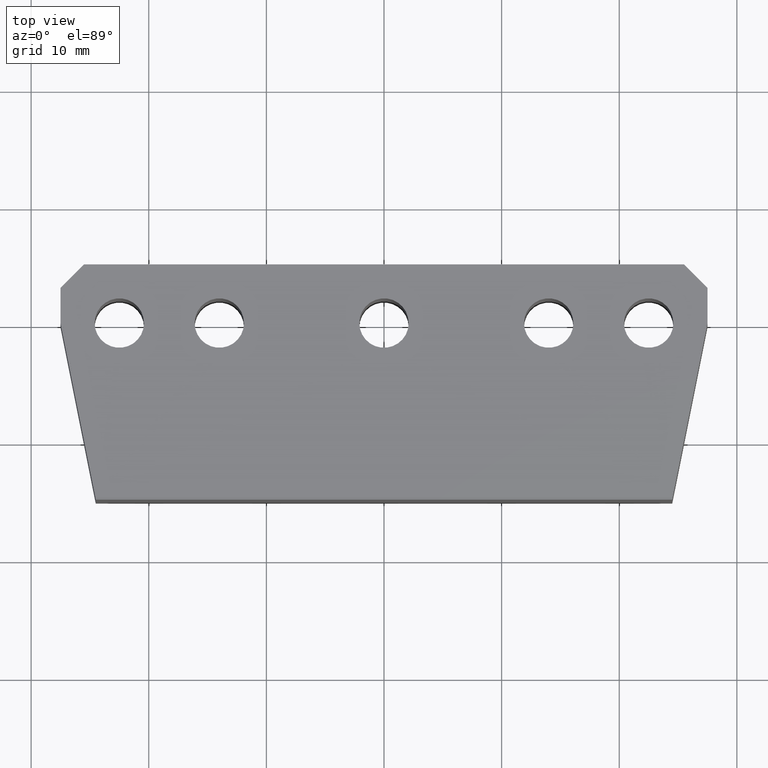
[diagram: clean part render]
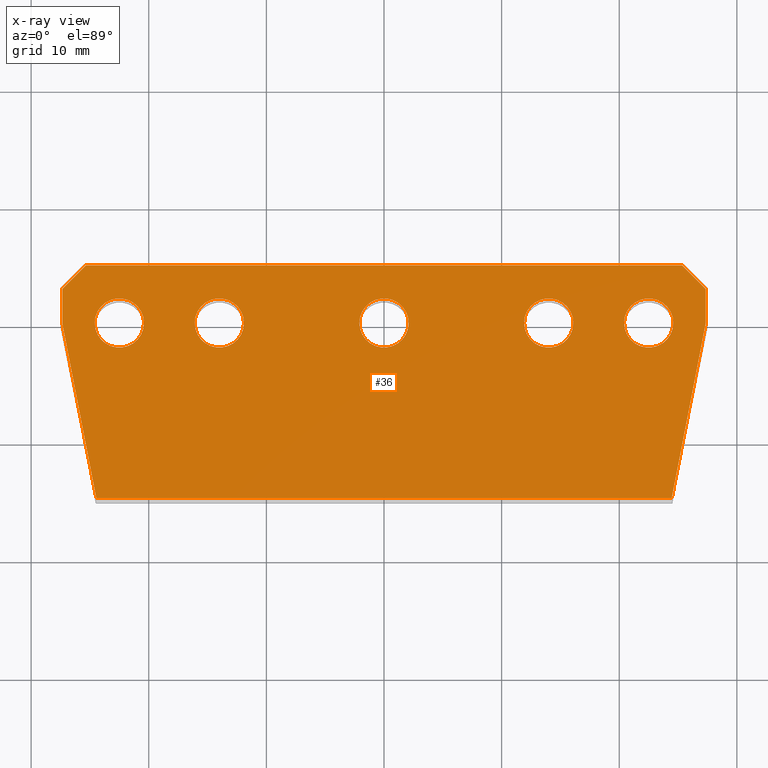
[diagram: x-ray — body ghosted, one internal face saturated and labeled with its STEP entity id]
A machine part, top view, then the same camera in x-ray: the body is ghosted and one INTERNAL B-rep face — a face not visible from any outside direction — is saturated and labeled: STEP entity #36.
In plain terms, the highlighted planar face has unit normal (0, 0, 1).
Its self-contained STEP definition (entity closure, byte-faithful):
#36 = ADVANCED_FACE ( 'NONE', ( #2182, #2196, #2179, #2177, #2183, #2181 ), #2180, .F. ) ;
#107 = EDGE_CURVE ( 'NONE', #2748, #2770, #1866, .T. ) ;
#112 = EDGE_CURVE ( 'NONE', #2748, #2763, #1845, .T. ) ;
#113 = EDGE_CURVE ( 'NONE', #2751, #2752, #649, .T. ) ;
#114 = EDGE_CURVE ( 'NONE', #2746, #2700, #705, .T. ) ;
#115 = EDGE_CURVE ( 'NONE', #2761, #2744, #707, .T. ) ;
#117 = EDGE_CURVE ( 'NONE', #2767, #2770, #1828, .T. ) ;
#120 = EDGE_CURVE ( 'NONE', #2768, #2763, #1834, .T. ) ;
#123 = EDGE_CURVE ( 'NONE', #2767, #2772, #1813, .T. ) ;
#126 = EDGE_CURVE ( 'NONE', #2759, #2760, #724, .T. ) ;
#127 = EDGE_CURVE ( 'NONE', #2755, #2756, #686, .T. ) ;
#128 = EDGE_CURVE ( 'NONE', #2771, #2768, #1797, .T. ) ;
#130 = EDGE_CURVE ( 'NONE', #2762, #2771, #1789, .T. ) ;
#132 = EDGE_CURVE ( 'NONE', #2772, #2762, #1784, .T. ) ;
#141 = EDGE_CURVE ( 'NONE', #2752, #2751, #723, .T. ) ;
#255 = CIRCLE ( 'NONE', #743, 2.099999999999999600 ) ;
#270 = AXIS2_PLACEMENT_3D ( 'NONE', #2176, #2175, #2174 ) ;
#402 = CIRCLE ( 'NONE', #746, 2.099999999999999600 ) ;
#417 = AXIS2_PLACEMENT_3D ( 'NONE', #1318, #1316, #1314 ) ;
#499 = VECTOR ( 'NONE', #1817, 1000.000000000000000 ) ;
#518 = CIRCLE ( 'NONE', #417, 2.100000000000001000 ) ;
#546 = AXIS2_PLACEMENT_3D ( 'NONE', #1840, #1839, #1838 ) ;
#551 = AXIS2_PLACEMENT_3D ( 'NONE', #1756, #1755, #1754 ) ;
#560 = VECTOR ( 'NONE', #1842, 999.9999999999998900 ) ;
#601 = VECTOR ( 'NONE', #1826, 1000.000000000000000 ) ;
#633 = AXIS2_PLACEMENT_3D ( 'NONE', #1801, #1800, #1799 ) ;
#638 = VECTOR ( 'NONE', #1855, 1000.000000000000000 ) ;
#649 = CIRCLE ( 'NONE', #546, 2.100000000000001000 ) ;
#663 = AXIS2_PLACEMENT_3D ( 'NONE', #1279, #1278, #1276 ) ;
#676 = VECTOR ( 'NONE', #1781, 1000.000000000000100 ) ;
#684 = AXIS2_PLACEMENT_3D ( 'NONE', #1837, #1836, #1835 ) ;
#686 = CIRCLE ( 'NONE', #752, 2.099999999999999600 ) ;
#698 = AXIS2_PLACEMENT_3D ( 'NONE', #1832, #1831, #1830 ) ;
#701 = VECTOR ( 'NONE', #1809, 1000.000000000000000 ) ;
#705 = CIRCLE ( 'NONE', #684, 2.100000000000001000 ) ;
#707 = CIRCLE ( 'NONE', #698, 2.099999999999999600 ) ;
#708 = VECTOR ( 'NONE', #1787, 1000.000000000000000 ) ;
#723 = CIRCLE ( 'NONE', #551, 2.100000000000001000 ) ;
#724 = CIRCLE ( 'NONE', #633, 2.100000000000000500 ) ;
#725 = VECTOR ( 'NONE', #1792, 1000.000000000000200 ) ;
#736 = CIRCLE ( 'NONE', #663, 2.100000000000000500 ) ;
#743 = AXIS2_PLACEMENT_3D ( 'NONE', #1205, #1204, #1203 ) ;
#746 = AXIS2_PLACEMENT_3D ( 'NONE', #1309, #1307, #1305 ) ;
#752 = AXIS2_PLACEMENT_3D ( 'NONE', #1796, #1795, #1794 ) ;
#797 = EDGE_LOOP ( 'NONE', ( #3052, #3056 ) ) ;
#812 = EDGE_LOOP ( 'NONE', ( #3063, #3064 ) ) ;
#846 = EDGE_LOOP ( 'NONE', ( #3150, #3151 ) ) ;
#851 = EDGE_LOOP ( 'NONE', ( #3058, #3060 ) ) ;
#870 = EDGE_LOOP ( 'NONE', ( #3065, #3149 ) ) ;
#876 = EDGE_LOOP ( 'NONE', ( #3153, #3156, #3157, #3158, #2902, #2915, #2937, #2939 ) ) ;
#1203 = DIRECTION ( 'NONE',  ( 1.000000000000000000, 0.0000000000000000000, 0.0000000000000000000 ) ) ;
#1204 = DIRECTION ( 'NONE',  ( 0.0000000000000000000, 0.0000000000000000000, 1.000000000000000000 ) ) ;
#1205 = CARTESIAN_POINT ( 'NONE',  ( -14.00000000000000000, -1.734723475976807100E-015, -0.5000000000000000000 ) ) ;
#1271 = EDGE_CURVE ( 'NONE', #2700, #2746, #518, .T. ) ;
#1274 = EDGE_CURVE ( 'NONE', #2744, #2761, #402, .T. ) ;
#1276 = DIRECTION ( 'NONE',  ( 1.000000000000000000, 0.0000000000000000000, 0.0000000000000000000 ) ) ;
#1278 = DIRECTION ( 'NONE',  ( 0.0000000000000000000, 0.0000000000000000000, 1.000000000000000000 ) ) ;
#1279 = CARTESIAN_POINT ( 'NONE',  ( 0.0000000000000000000, 0.0000000000000000000, -0.5000000000000000000 ) ) ;
#1282 = EDGE_CURVE ( 'NONE', #2760, #2759, #736, .T. ) ;
#1305 = DIRECTION ( 'NONE',  ( 1.000000000000000000, 0.0000000000000000000, 0.0000000000000000000 ) ) ;
#1307 = DIRECTION ( 'NONE',  ( 0.0000000000000000000, 0.0000000000000000000, 1.000000000000000000 ) ) ;
#1309 = CARTESIAN_POINT ( 'NONE',  ( 14.00000000000000000, 0.0000000000000000000, -0.5000000000000000000 ) ) ;
#1310 = EDGE_CURVE ( 'NONE', #2756, #2755, #255, .T. ) ;
#1314 = DIRECTION ( 'NONE',  ( 1.000000000000000000, 0.0000000000000000000, 0.0000000000000000000 ) ) ;
#1316 = DIRECTION ( 'NONE',  ( 0.0000000000000000000, 0.0000000000000000000, 1.000000000000000000 ) ) ;
#1318 = CARTESIAN_POINT ( 'NONE',  ( 22.50000000000000000, 0.0000000000000000000, -0.5000000000000000000 ) ) ;
#1754 = DIRECTION ( 'NONE',  ( 1.000000000000000000, 0.0000000000000000000, 0.0000000000000000000 ) ) ;
#1755 = DIRECTION ( 'NONE',  ( 0.0000000000000000000, 0.0000000000000000000, 1.000000000000000000 ) ) ;
#1756 = CARTESIAN_POINT ( 'NONE',  ( -22.50000000000000000, -2.818925648462311500E-015, -0.5000000000000000000 ) ) ;
#1781 = DIRECTION ( 'NONE',  ( 0.1908089953765455000, -0.9816271834476638600, -0.0000000000000000000 ) ) ;
#1782 = CARTESIAN_POINT ( 'NONE',  ( -24.45373339384798700, -14.90000000000000400, -0.5000000000000000000 ) ) ;
#1784 = LINE ( 'NONE', #1782, #676 ) ;
#1787 = DIRECTION ( 'NONE',  ( 1.000000000000000000, 7.093900338396690700E-017, 0.0000000000000000000 ) ) ;
#1788 = CARTESIAN_POINT ( 'NONE',  ( 1.824663467195342400E-015, -14.90000000000000000, -0.5000000000000000000 ) ) ;
#1789 = LINE ( 'NONE', #1788, #708 ) ;
#1792 = DIRECTION ( 'NONE',  ( 0.1908089953765449700, 0.9816271834476638600, 0.0000000000000000000 ) ) ;
#1794 = DIRECTION ( 'NONE',  ( 1.000000000000000000, 0.0000000000000000000, 0.0000000000000000000 ) ) ;
#1795 = DIRECTION ( 'NONE',  ( 0.0000000000000000000, 0.0000000000000000000, 1.000000000000000000 ) ) ;
#1796 = CARTESIAN_POINT ( 'NONE',  ( -14.00000000000000000, -1.734723475976807100E-015, -0.5000000000000000000 ) ) ;
#1797 = LINE ( 'NONE', #1802, #725 ) ;
#1799 = DIRECTION ( 'NONE',  ( 1.000000000000000000, 0.0000000000000000000, 0.0000000000000000000 ) ) ;
#1800 = DIRECTION ( 'NONE',  ( 0.0000000000000000000, 0.0000000000000000000, 1.000000000000000000 ) ) ;
#1801 = CARTESIAN_POINT ( 'NONE',  ( 0.0000000000000000000, 0.0000000000000000000, -0.5000000000000000000 ) ) ;
#1802 = CARTESIAN_POINT ( 'NONE',  ( 24.45373339384799400, -14.89999999999999900, -0.5000000000000000000 ) ) ;
#1809 = DIRECTION ( 'NONE',  ( -0.0000000000000000000, -1.000000000000000000, -0.0000000000000000000 ) ) ;
#1813 = LINE ( 'NONE', #1818, #701 ) ;
#1817 = DIRECTION ( 'NONE',  ( 0.0000000000000000000, 1.000000000000000000, 0.0000000000000000000 ) ) ;
#1818 = CARTESIAN_POINT ( 'NONE',  ( -27.35000000000000100, -3.349298377704202300E-015, -0.5000000000000000000 ) ) ;
#1819 = CARTESIAN_POINT ( 'NONE',  ( 27.35000000000000100, 3.349298377704202300E-015, -0.5000000000000000000 ) ) ;
#1826 = DIRECTION ( 'NONE',  ( 0.7071067811865466800, 0.7071067811865483500, -0.0000000000000000000 ) ) ;
#1827 = CARTESIAN_POINT ( 'NONE',  ( -25.35000000000000100, 4.899999999999997700, -0.5000000000000000000 ) ) ;
#1828 = LINE ( 'NONE', #1827, #601 ) ;
#1830 = DIRECTION ( 'NONE',  ( 1.000000000000000000, 0.0000000000000000000, 0.0000000000000000000 ) ) ;
#1831 = DIRECTION ( 'NONE',  ( 0.0000000000000000000, 0.0000000000000000000, 1.000000000000000000 ) ) ;
#1832 = CARTESIAN_POINT ( 'NONE',  ( 14.00000000000000000, 0.0000000000000000000, -0.5000000000000000000 ) ) ;
#1834 = LINE ( 'NONE', #1819, #499 ) ;
#1835 = DIRECTION ( 'NONE',  ( 1.000000000000000000, 0.0000000000000000000, 0.0000000000000000000 ) ) ;
#1836 = DIRECTION ( 'NONE',  ( 0.0000000000000000000, 0.0000000000000000000, 1.000000000000000000 ) ) ;
#1837 = CARTESIAN_POINT ( 'NONE',  ( 22.50000000000000000, 0.0000000000000000000, -0.5000000000000000000 ) ) ;
#1838 = DIRECTION ( 'NONE',  ( 1.000000000000000000, 0.0000000000000000000, 0.0000000000000000000 ) ) ;
#1839 = DIRECTION ( 'NONE',  ( 0.0000000000000000000, 0.0000000000000000000, 1.000000000000000000 ) ) ;
#1840 = CARTESIAN_POINT ( 'NONE',  ( -22.50000000000000000, -2.818925648462311500E-015, -0.5000000000000000000 ) ) ;
#1842 = DIRECTION ( 'NONE',  ( 0.7071067811865486800, -0.7071067811865464600, -0.0000000000000000000 ) ) ;
#1843 = CARTESIAN_POINT ( 'NONE',  ( 27.35000000000000100, 2.900000000000005700, -0.5000000000000000000 ) ) ;
#1845 = LINE ( 'NONE', #1843, #560 ) ;
#1855 = DIRECTION ( 'NONE',  ( -1.000000000000000000, -1.268536362688707000E-016, 0.0000000000000000000 ) ) ;
#1857 = CARTESIAN_POINT ( 'NONE',  ( 27.35000000000000100, 4.900000000000004800, -0.5000000000000000000 ) ) ;
#1866 = LINE ( 'NONE', #1857, #638 ) ;
#2174 = DIRECTION ( 'NONE',  ( 1.000000000000000000, 0.0000000000000000000, -0.0000000000000000000 ) ) ;
#2175 = DIRECTION ( 'NONE',  ( 0.0000000000000000000, 0.0000000000000000000, 1.000000000000000000 ) ) ;
#2176 = CARTESIAN_POINT ( 'NONE',  ( 27.35000000000000100, -14.89999999999999900, -0.5000000000000000000 ) ) ;
#2177 = FACE_BOUND ( 'NONE', #870, .T. ) ;
#2179 = FACE_BOUND ( 'NONE', #812, .T. ) ;
#2180 = PLANE ( 'NONE',  #270 ) ;
#2181 = FACE_OUTER_BOUND ( 'NONE', #876, .T. ) ;
#2182 = FACE_BOUND ( 'NONE', #797, .T. ) ;
#2183 = FACE_BOUND ( 'NONE', #846, .T. ) ;
#2196 = FACE_BOUND ( 'NONE', #851, .T. ) ;
#2366 = CARTESIAN_POINT ( 'NONE',  ( 11.90000000000000000, 2.571758278209440000E-016, -0.5000000000000000000 ) ) ;
#2531 = CARTESIAN_POINT ( 'NONE',  ( 20.39999999999999900, 2.571758278209442400E-016, -0.5000000000000000000 ) ) ;
#2633 = CARTESIAN_POINT ( 'NONE',  ( -27.35000000000000100, -3.349298377704202300E-015, -0.5000000000000000000 ) ) ;
#2634 = CARTESIAN_POINT ( 'NONE',  ( 24.45373339384799400, -14.89999999999999900, -0.5000000000000000000 ) ) ;
#2635 = CARTESIAN_POINT ( 'NONE',  ( -25.35000000000000500, 4.899999999999996800, -0.5000000000000000000 ) ) ;
#2637 = CARTESIAN_POINT ( 'NONE',  ( 27.35000000000000100, 3.349298377704202300E-015, -0.5000000000000000000 ) ) ;
#2638 = CARTESIAN_POINT ( 'NONE',  ( -27.35000000000000100, 2.899999999999991900, -0.5000000000000000000 ) ) ;
#2643 = CARTESIAN_POINT ( 'NONE',  ( 27.35000000000000100, 2.900000000000006600, -0.5000000000000000000 ) ) ;
#2644 = CARTESIAN_POINT ( 'NONE',  ( -24.45373339384798700, -14.90000000000000400, -0.5000000000000000000 ) ) ;
#2645 = CARTESIAN_POINT ( 'NONE',  ( 16.10000000000000100, 0.0000000000000000000, -0.5000000000000000000 ) ) ;
#2646 = CARTESIAN_POINT ( 'NONE',  ( -2.100000000000000500, 2.571758278209442900E-016, -0.5000000000000000000 ) ) ;
#2647 = CARTESIAN_POINT ( 'NONE',  ( 2.100000000000000500, 0.0000000000000000000, -0.5000000000000000000 ) ) ;
#2652 = CARTESIAN_POINT ( 'NONE',  ( -16.10000000000000100, -1.477547648155863000E-015, -0.5000000000000000000 ) ) ;
#2653 = CARTESIAN_POINT ( 'NONE',  ( -11.90000000000000000, -1.734723475976807100E-015, -0.5000000000000000000 ) ) ;
#2656 = CARTESIAN_POINT ( 'NONE',  ( -24.60000000000000100, -2.561749820641367500E-015, -0.5000000000000000000 ) ) ;
#2657 = CARTESIAN_POINT ( 'NONE',  ( -20.39999999999999900, -2.818925648462311500E-015, -0.5000000000000000000 ) ) ;
#2660 = CARTESIAN_POINT ( 'NONE',  ( 25.34999999999999800, 4.900000000000004800, -0.5000000000000000000 ) ) ;
#2663 = CARTESIAN_POINT ( 'NONE',  ( 24.60000000000000100, 0.0000000000000000000, -0.5000000000000000000 ) ) ;
#2700 = VERTEX_POINT ( 'NONE', #2531 ) ;
#2744 = VERTEX_POINT ( 'NONE', #2366 ) ;
#2746 = VERTEX_POINT ( 'NONE', #2663 ) ;
#2748 = VERTEX_POINT ( 'NONE', #2660 ) ;
#2751 = VERTEX_POINT ( 'NONE', #2657 ) ;
#2752 = VERTEX_POINT ( 'NONE', #2656 ) ;
#2755 = VERTEX_POINT ( 'NONE', #2653 ) ;
#2756 = VERTEX_POINT ( 'NONE', #2652 ) ;
#2759 = VERTEX_POINT ( 'NONE', #2647 ) ;
#2760 = VERTEX_POINT ( 'NONE', #2646 ) ;
#2761 = VERTEX_POINT ( 'NONE', #2645 ) ;
#2762 = VERTEX_POINT ( 'NONE', #2644 ) ;
#2763 = VERTEX_POINT ( 'NONE', #2643 ) ;
#2767 = VERTEX_POINT ( 'NONE', #2638 ) ;
#2768 = VERTEX_POINT ( 'NONE', #2637 ) ;
#2770 = VERTEX_POINT ( 'NONE', #2635 ) ;
#2771 = VERTEX_POINT ( 'NONE', #2634 ) ;
#2772 = VERTEX_POINT ( 'NONE', #2633 ) ;
#2902 = ORIENTED_EDGE ( 'NONE', *, *, #120, .F. ) ;
#2915 = ORIENTED_EDGE ( 'NONE', *, *, #128, .F. ) ;
#2937 = ORIENTED_EDGE ( 'NONE', *, *, #130, .F. ) ;
#2939 = ORIENTED_EDGE ( 'NONE', *, *, #132, .F. ) ;
#3052 = ORIENTED_EDGE ( 'NONE', *, *, #114, .T. ) ;
#3056 = ORIENTED_EDGE ( 'NONE', *, *, #1271, .T. ) ;
#3058 = ORIENTED_EDGE ( 'NONE', *, *, #115, .T. ) ;
#3060 = ORIENTED_EDGE ( 'NONE', *, *, #1274, .T. ) ;
#3063 = ORIENTED_EDGE ( 'NONE', *, *, #126, .T. ) ;
#3064 = ORIENTED_EDGE ( 'NONE', *, *, #1282, .T. ) ;
#3065 = ORIENTED_EDGE ( 'NONE', *, *, #127, .T. ) ;
#3149 = ORIENTED_EDGE ( 'NONE', *, *, #1310, .T. ) ;
#3150 = ORIENTED_EDGE ( 'NONE', *, *, #113, .T. ) ;
#3151 = ORIENTED_EDGE ( 'NONE', *, *, #141, .T. ) ;
#3153 = ORIENTED_EDGE ( 'NONE', *, *, #123, .F. ) ;
#3156 = ORIENTED_EDGE ( 'NONE', *, *, #117, .T. ) ;
#3157 = ORIENTED_EDGE ( 'NONE', *, *, #107, .F. ) ;
#3158 = ORIENTED_EDGE ( 'NONE', *, *, #112, .T. ) ;